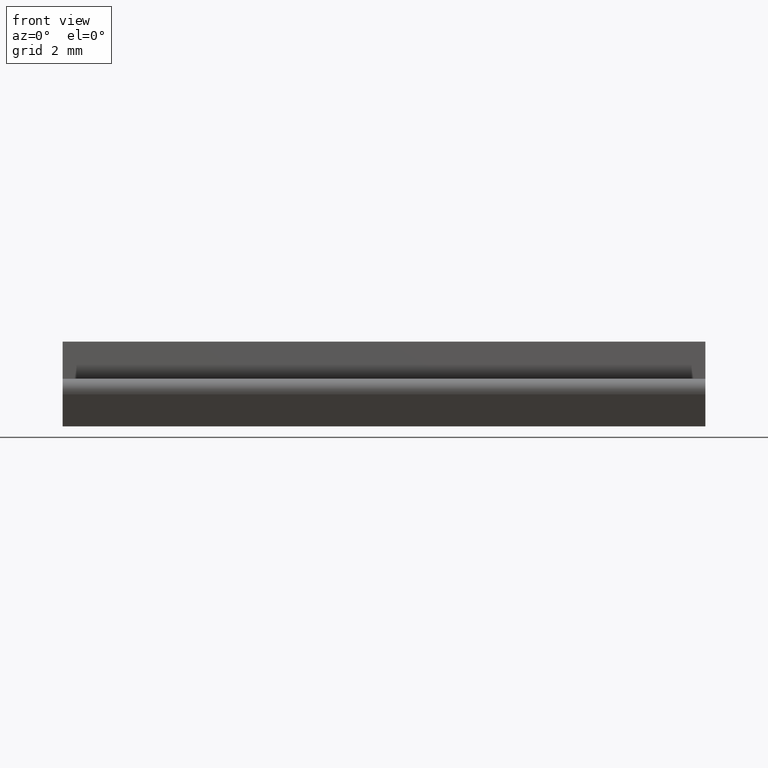
[diagram: clean part render]
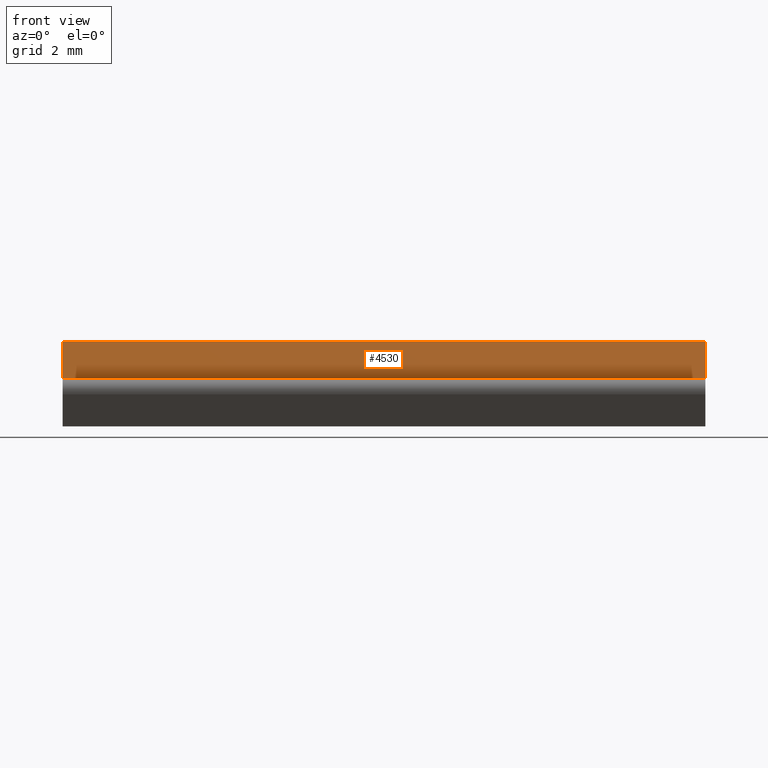
[diagram: same view with one face highlighted and labeled with its STEP entity id]
A machine part, front view. The second image highlights one B-rep face of the part: STEP entity #4530.
In plain terms, the highlighted planar face has unit normal (0, 1, -0).
Its self-contained STEP definition (entity closure, byte-faithful):
#120=CARTESIAN_POINT('',(5.79881796228878,-2.,0.900000000003431));
#130=VERTEX_POINT('',#120);
#1100=CARTESIAN_POINT('',(5.79881796228829,-2.,1.6000000000034));
#1110=VERTEX_POINT('',#1100);
#1140=CARTESIAN_POINT('',(5.79881796228819,-2.,1.74912278860772));
#1150=DIRECTION('',(-6.94277968449342E-13,2.37522131592436E-61,1.));
#1160=VECTOR('',#1150,1.);
#1170=LINE('',#1140,#1160);
#1180=EDGE_CURVE('',#130,#1110,#1170,.T.);
#1350=CARTESIAN_POINT('',(5.79881796228819,10.15,1.74912278860772));
#1360=DIRECTION('',(-6.94277968449342E-13,2.37522131592436E-61,1.));
#1370=VECTOR('',#1360,1.);
#1380=LINE('',#1350,#1370);
#1390=CARTESIAN_POINT('',(5.79881796228878,10.15,0.900000000003431));
#1400=VERTEX_POINT('',#1390);
#1410=CARTESIAN_POINT('',(5.79881796228829,10.15,1.6000000000034));
#1420=VERTEX_POINT('',#1410);
#1430=EDGE_CURVE('',#1400,#1420,#1380,.T.);
#3890=CARTESIAN_POINT('',(5.79881796228878,-2.23985445467739E-48,
0.900000000003431));
#3900=DIRECTION('',(-3.42113882891801E-49,-1.,0.));
#3910=VECTOR('',#3900,1.);
#3920=LINE('',#3890,#3910);
#3930=EDGE_CURVE('',#1400,#130,#3920,.T.);
#4370=CARTESIAN_POINT('',(5.79881796228843,-2.23985445467727E-48,
1.40000000000345));
#4380=DIRECTION('',(-1.,3.42113882891801E-49,-6.94277968449342E-13));
#4390=DIRECTION('',(-6.94277968449342E-13,2.37522131592436E-61,1.));
#4400=AXIS2_PLACEMENT_3D('',#4370,#4380,#4390);
#4410=PLANE('',#4400);
#4420=ORIENTED_EDGE('',*,*,#1180,.F.);
#4430=CARTESIAN_POINT('',(5.79881796228829,-2.23985445467722E-48,
1.6000000000034));
#4440=DIRECTION('',(-3.42113882891801E-49,-1.,0.));
#4450=VECTOR('',#4440,1.);
#4460=LINE('',#4430,#4450);
#4470=EDGE_CURVE('',#1420,#1110,#4460,.T.);
#4480=ORIENTED_EDGE('',*,*,#4470,.T.);
#4490=ORIENTED_EDGE('',*,*,#1430,.T.);
#4500=ORIENTED_EDGE('',*,*,#3930,.F.);
#4510=EDGE_LOOP('',(#4500,#4490,#4480,#4420));
#4520=FACE_OUTER_BOUND('',#4510,.T.);
#4530=ADVANCED_FACE('',(#4520),#4410,.F.);